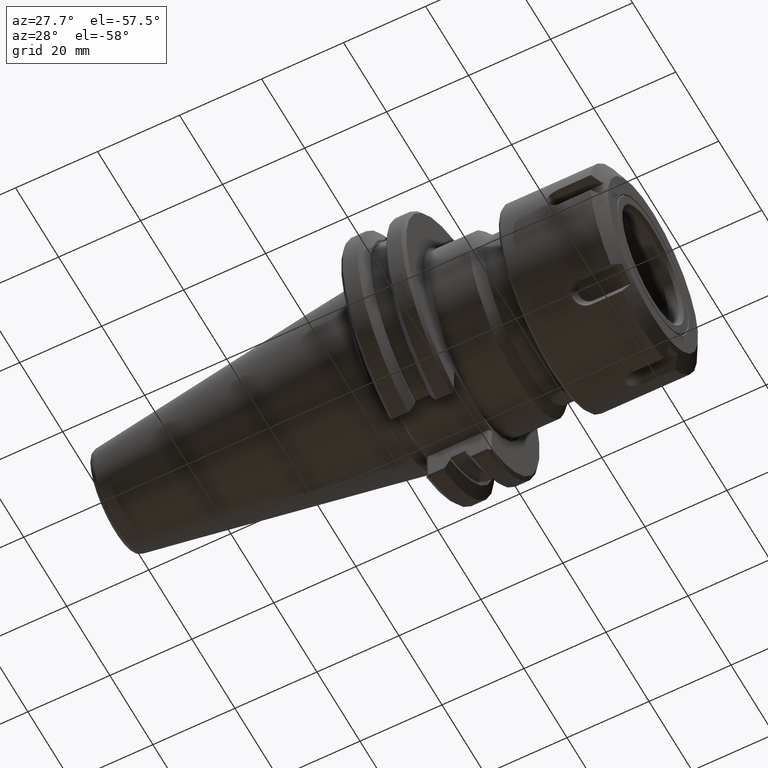
[diagram: clean part render]
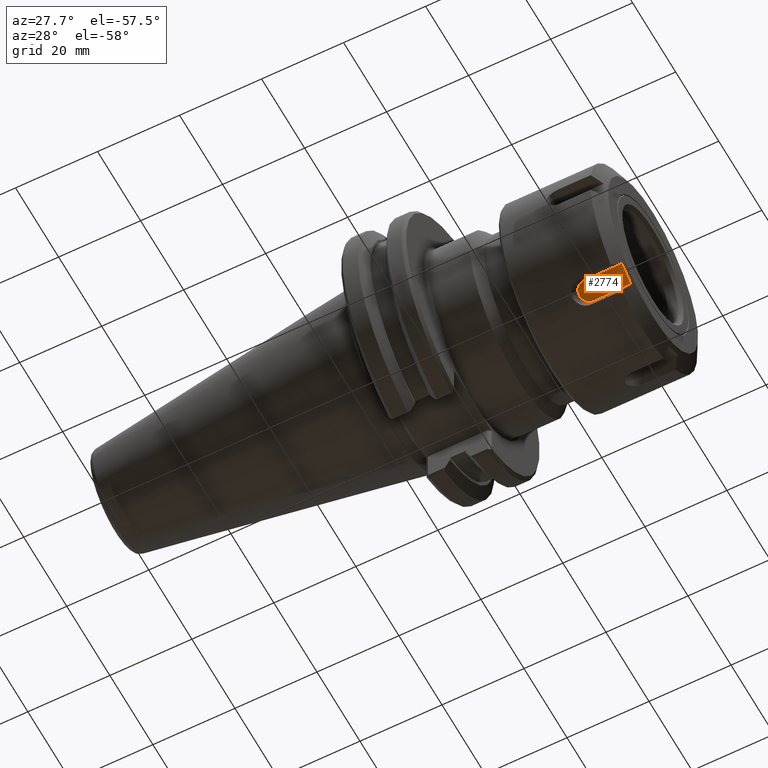
[diagram: same view with one face highlighted and labeled with its STEP entity id]
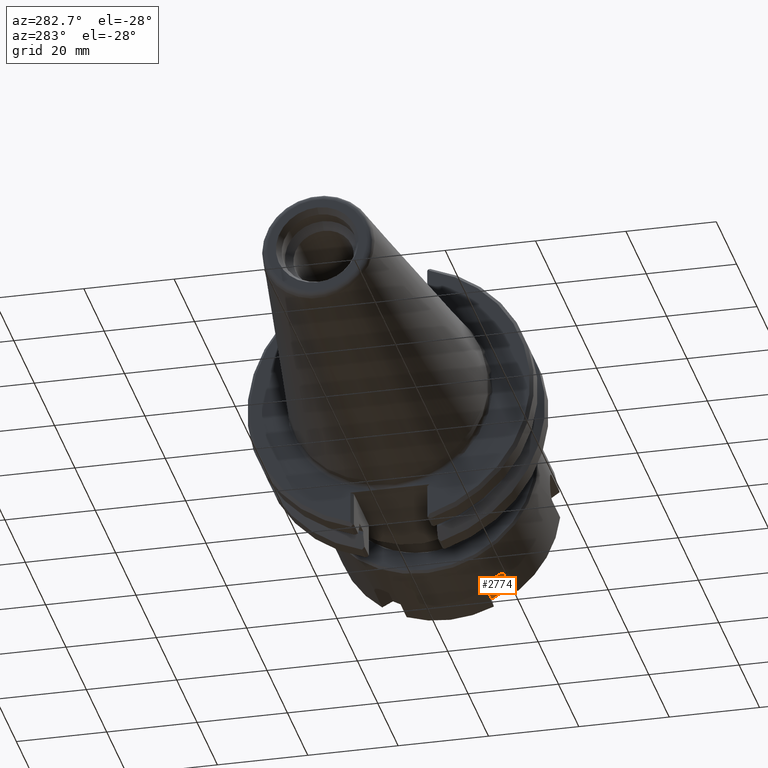
[diagram: same view with one face highlighted and labeled with its STEP entity id]
A machine part, auxiliary view. The second image highlights one B-rep face of the part: STEP entity #2774.
A second angle (auxiliary view) of the same face is appended — the face is thin or edge-on in the first view.
In plain terms, the highlighted planar face has unit normal (-0, -0.515, -0.8572).
Its self-contained STEP definition (entity closure, byte-faithful):
#2727=CARTESIAN_POINT('',(0.222191105001248,-0.744781847254617,-0.43));
#2728=DIRECTION('',(1.936648E-031,-0.866025403784439,-0.5));
#2729=DIRECTION('',(1.0,0.0,0.0));
#2730=AXIS2_PLACEMENT_3D('',#2727,#2728,#2729);
#2731=PLANE('',#2730);
#2732=CARTESIAN_POINT('',(0.024252481057824,-0.697781847254617,-0.511406387955737));
#2733=VERTEX_POINT('',#2732);
#2734=CARTESIAN_POINT('',(0.024252481057824,-0.791781847254618,-0.348593612044263));
#2735=VERTEX_POINT('',#2734);
#2736=CARTESIAN_POINT('',(0.024252481057824,-0.697781847254617,-0.511406387955737));
#2737=CARTESIAN_POINT('',(0.018355662766565,-0.744781847254617,-0.43));
#2738=CARTESIAN_POINT('',(0.024252481057824,-0.791781847254618,-0.348593612044263));
#2746=(BOUNDED_CURVE()B_SPLINE_CURVE(2,(#2736,#2737,#2738),.UNSPECIFIED.,.F.,.U.)B_SPLINE_CURVE_WITH_KNOTS((3,3),(0.94371848047402,1.45822098431966),.UNSPECIFIED.)CURVE()GEOMETRIC_REPRESENTATION_ITEM()RATIONAL_B_SPLINE_CURVE((1.066011589984008,1.072360503039249,1.066011589984008))REPRESENTATION_ITEM(''));
#2747=EDGE_CURVE('',#2733,#2735,#2746,.T.);
#2748=ORIENTED_EDGE('',*,*,#2747,.F.);
#2749=CARTESIAN_POINT('',(0.386,-0.697781847254618,-0.511406387955737));
#2750=VERTEX_POINT('',#2749);
#2751=CARTESIAN_POINT('',(0.386,-0.697781847254618,-0.511406387955737));
#2752=DIRECTION('',(-1.0,0.0,0.0));
#2753=VECTOR('',#2752,0.361747518942176);
#2754=LINE('',#2751,#2753);
#2755=EDGE_CURVE('',#2750,#2733,#2754,.T.);
#2756=ORIENTED_EDGE('',*,*,#2755,.F.);
#2757=CARTESIAN_POINT('',(0.386,-0.791781847254618,-0.348593612044263));
#2758=VERTEX_POINT('',#2757);
#2759=CARTESIAN_POINT('',(0.386,-0.744781847254617,-0.43));
#2760=DIRECTION('',(0.0,0.866025403784439,0.5));
#2761=DIRECTION('',(0.0,-0.5,0.866025403784439));
#2762=AXIS2_PLACEMENT_3D('',#2759,#2760,#2761);
#2763=CIRCLE('',#2762,0.094);
#2764=EDGE_CURVE('',#2758,#2750,#2763,.T.);
#2765=ORIENTED_EDGE('',*,*,#2764,.F.);
#2766=CARTESIAN_POINT('',(0.024252481057824,-0.791781847254618,-0.348593612044263));
#2767=DIRECTION('',(1.0,0.0,0.0));
#2768=VECTOR('',#2767,0.361747518942176);
#2769=LINE('',#2766,#2768);
#2770=EDGE_CURVE('',#2735,#2758,#2769,.T.);
#2771=ORIENTED_EDGE('',*,*,#2770,.F.);
#2772=EDGE_LOOP('',(#2748,#2756,#2765,#2771));
#2773=FACE_OUTER_BOUND('',#2772,.T.);
#2774=ADVANCED_FACE('',(#2773),#2731,.T.);